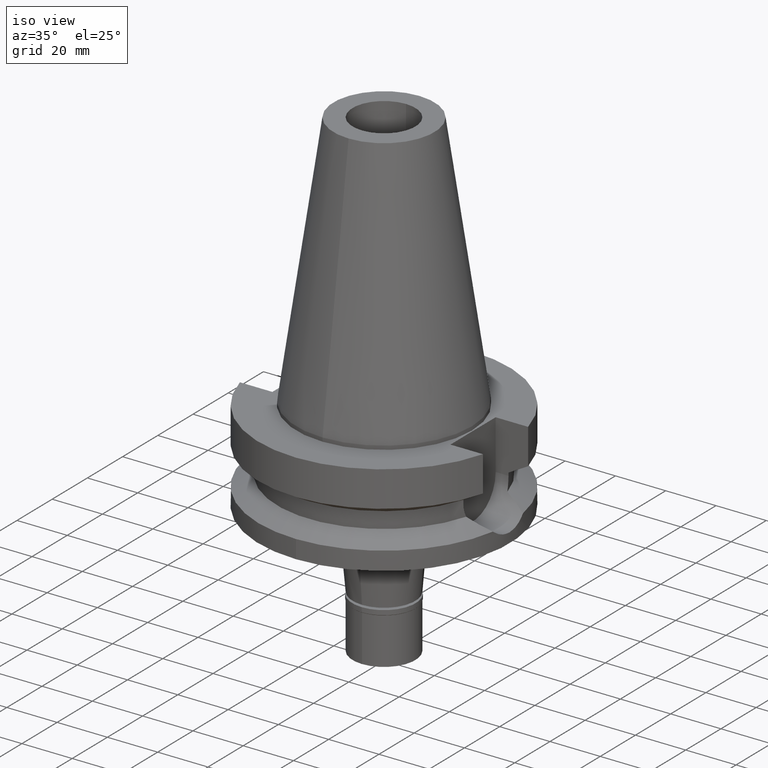
[diagram: clean part render]
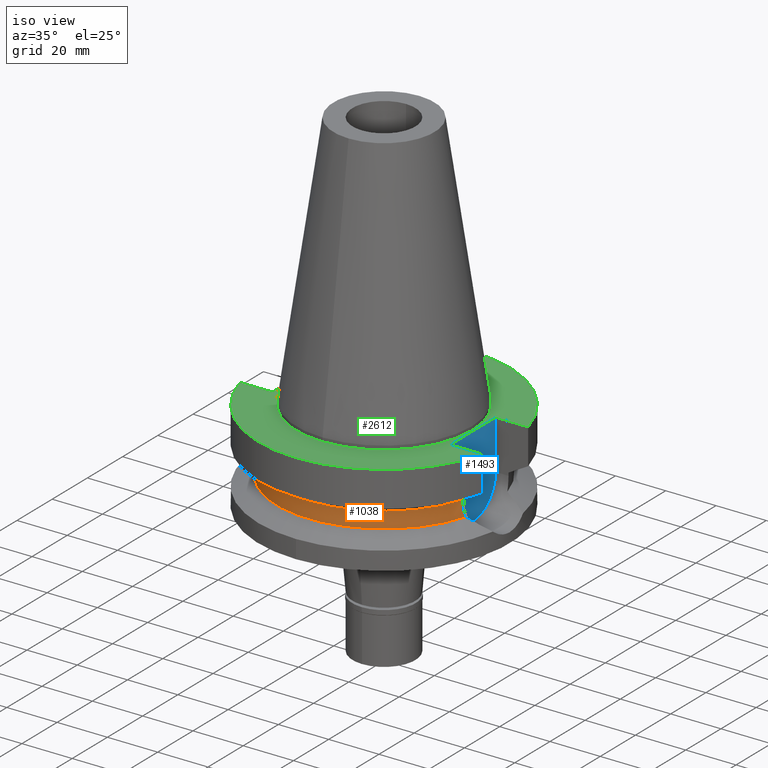
[diagram: same view with three faces highlighted in distinct colors, each labeled with its STEP entity id]
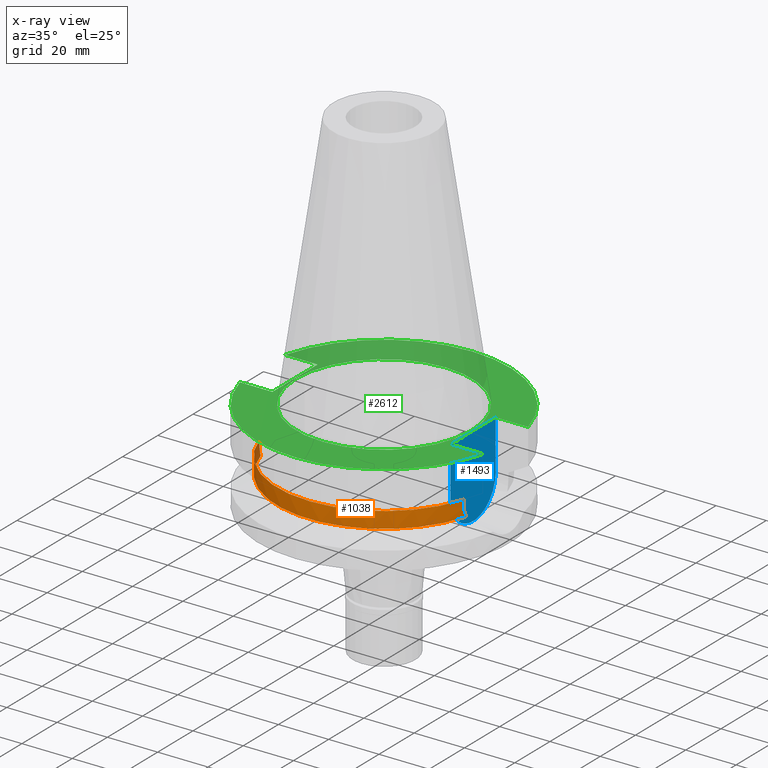
[diagram: x-ray of the same camera — body ghosted, the three highlighted faces saturated]
A machine part, iso view with three faces highlighted in distinct colors.
The next image is the same camera in x-ray (body ghosted, the three faces saturated) — at least one of them is partly hidden behind the body in this view.
Their STEP definitions:

[orange] entity #1038 — the highlighted cylindrical surface (partial cylindrical patch) has radius 42.5 mm, axis along (0, 0, -1).
#84 = DIRECTION ( 'NONE',  ( -9.660230349174957767E-07, -3.045480944670984998E-06, -0.9999999999948958607 ) ) ;
#147 = CARTESIAN_POINT ( 'NONE',  ( 40.54944727710436325, -12.72806419700720681, -22.93049076230283134 ) ) ;
#254 = CARTESIAN_POINT ( 'NONE',  ( -40.68244601107063829, -12.29666625012534986, -24.88710380514258347 ) ) ;
#334 = AXIS2_PLACEMENT_3D ( 'NONE', #668, #1646, #2634 ) ;
#406 = ORIENTED_EDGE ( 'NONE', *, *, #600, .F. ) ;
#423 = CARTESIAN_POINT ( 'NONE',  ( 40.54025313608426728, -12.75731810732606419, -22.70684014853312505 ) ) ;
#443 = CARTESIAN_POINT ( 'NONE',  ( 40.59736864107561161, -12.57412283048166479, -23.79851909554700384 ) ) ;
#484 = CIRCLE ( 'NONE', #334, 42.50000000000002132 ) ;
#485 = CARTESIAN_POINT ( 'NONE',  ( -40.51083188481999997, -12.84999999999999964, -21.14999999999999858 ) ) ;
#500 = CARTESIAN_POINT ( 'NONE',  ( -40.79434743163793087, -11.92110232363801892, -25.97065181133054068 ) ) ;
#514 = CARTESIAN_POINT ( 'NONE',  ( -40.60092750940732031, -12.56262654778222121, -23.85254111938501254 ) ) ;
#536 = CARTESIAN_POINT ( 'NONE',  ( -40.51083188481999997, -12.84999999999999964, -21.14999999999999858 ) ) ;
#600 = EDGE_CURVE ( 'NONE', #2950, #1372, #2800, .T. ) ;
#641 = CIRCLE ( 'NONE', #1309, 42.50000000000000000 ) ;
#642 = CARTESIAN_POINT ( 'NONE',  ( 0.0000000000000000000, 0.0000000000000000000, -26.40718074535000426 ) ) ;
#660 = EDGE_CURVE ( 'NONE', #848, #2575, #2712, .T. ) ;
#668 = CARTESIAN_POINT ( 'NONE',  ( 0.0000000000000000000, 1.006319759053999930E-14, -19.99281925464999787 ) ) ;
#715 = CARTESIAN_POINT ( 'NONE',  ( 40.51083188481999997, -12.84999999999999964, -19.99281925464999787 ) ) ;
#788 = CARTESIAN_POINT ( 'NONE',  ( 0.0000000000000000000, 2.584984463639999652E-14, 111.0799999999999983 ) ) ;
#795 = CARTESIAN_POINT ( 'NONE',  ( 40.51083300266000009, -12.84999647591000027, -19.99284629961000093 ) ) ;
#818 = VERTEX_POINT ( 'NONE', #715 ) ;
#848 = VERTEX_POINT ( 'NONE', #2888 ) ;
#876 = CARTESIAN_POINT ( 'NONE',  ( 40.85052569294000335, -11.72538061688000077, -26.40718074535000426 ) ) ;
#882 = EDGE_CURVE ( 'NONE', #1627, #2950, #1872, .T. ) ;
#922 = CARTESIAN_POINT ( 'NONE',  ( 40.56599673094051184, -12.67509433840682043, -23.26596311450202137 ) ) ;
#923 = ORIENTED_EDGE ( 'NONE', *, *, #2512, .T. ) ;
#994 = CARTESIAN_POINT ( 'NONE',  ( -40.51083299875000421, -12.84999648821000129, -19.99284620517000022 ) ) ;
#1038 = ADVANCED_FACE ( 'NONE', ( #1553 ), #2560, .T. ) ;
#1088 = LINE ( 'NONE', #795, #2637 ) ;
#1102 = AXIS2_PLACEMENT_3D ( 'NONE', #788, #2266, #2286 ) ;
#1309 = AXIS2_PLACEMENT_3D ( 'NONE', #642, #2794, #2824 ) ;
#1372 = VERTEX_POINT ( 'NONE', #994 ) ;
#1433 = ORIENTED_EDGE ( 'NONE', *, *, #1949, .F. ) ;
#1480 = CARTESIAN_POINT ( 'NONE',  ( -40.51083188481997865, -12.84999999999998366, -22.03308001789160642 ) ) ;
#1484 = CARTESIAN_POINT ( 'NONE',  ( -40.85052569294000335, -11.72538061688000077, -26.40718074535000426 ) ) ;
#1553 = FACE_OUTER_BOUND ( 'NONE', #2568, .T. ) ;
#1606 = CARTESIAN_POINT ( 'NONE',  ( 40.58662608485430212, -12.60878154790981931, -23.62927549511434222 ) ) ;
#1622 = CARTESIAN_POINT ( 'NONE',  ( 40.51818719763606680, -12.82722225432865670, -22.03686830839346200 ) ) ;
#1627 = VERTEX_POINT ( 'NONE', #1484 ) ;
#1635 = CARTESIAN_POINT ( 'NONE',  ( 40.57496101843508285, -12.64633755877060395, -23.43369807924777959 ) ) ;
#1646 = DIRECTION ( 'NONE',  ( 0.0000000000000000000, 0.0000000000000000000, -1.000000000000000000 ) ) ;
#1649 = CARTESIAN_POINT ( 'NONE',  ( 40.59188398425018107, -12.59182459259424647, -23.71305796895322615 ) ) ;
#1678 = CARTESIAN_POINT ( 'NONE',  ( -40.60257095199526134, -12.55731571366184873, -23.87709474182232938 ) ) ;
#1730 = CARTESIAN_POINT ( 'NONE',  ( -40.66327695313456303, -12.35977177935085258, -24.67238797833527286 ) ) ;
#1819 = DIRECTION ( 'NONE',  ( -9.626500030012304395E-07, 3.034847144118096361E-06, 0.9999999999949314988 ) ) ;
#1846 = CARTESIAN_POINT ( 'NONE',  ( 40.51083188481999997, -12.84999999999999964, -21.14999999999999858 ) ) ;
#1872 = B_SPLINE_CURVE_WITH_KNOTS ( 'NONE', 3,
 ( #2899, #500, #2452, #254, #1730, #2710, #2436, #2236, #2912, #1678, #514, #2679, #1480, #485 ),
 .UNSPECIFIED., .F., .F.,
 ( 4, 2, 2, 1, 1, 2, 2, 4 ),
 ( 0.0000000000000000000, 0.2500000000000052736, 0.3750000000000088263, 0.4375000000000096034, 0.4687500000000088818, 0.4843750000000085487, 0.5000000000000082157, 1.000000000000000000 ),
 .UNSPECIFIED. ) ;
#1889 = CARTESIAN_POINT ( 'NONE',  ( 40.59544671389546977, -12.58032818125662189, -23.76890350619418513 ) ) ;
#1949 = EDGE_CURVE ( 'NONE', #818, #848, #1088, .T. ) ;
#2055 = CARTESIAN_POINT ( 'NONE',  ( 40.85052569294000335, -11.72538061688000077, -26.40718074535000426 ) ) ;
#2236 = CARTESIAN_POINT ( 'NONE',  ( -40.61156896389120163, -12.52821669071695787, -24.00856318993662342 ) ) ;
#2266 = DIRECTION ( 'NONE',  ( 0.0000000000000000000, 0.0000000000000000000, -1.000000000000000000 ) ) ;
#2286 = DIRECTION ( 'NONE',  ( 0.0000000000000000000, -1.000000000000000000, 0.0000000000000000000 ) ) ;
#2317 = EDGE_CURVE ( 'NONE', #818, #1372, #484, .T. ) ;
#2365 = CARTESIAN_POINT ( 'NONE',  ( 40.65435955980318283, -12.39001970627028015, -24.66361747036604513 ) ) ;
#2372 = ORIENTED_EDGE ( 'NONE', *, *, #2317, .T. ) ;
#2413 = VECTOR ( 'NONE', #1819, 1000.000000000000000 ) ;
#2436 = CARTESIAN_POINT ( 'NONE',  ( -40.62482961095376055, -12.48525133054082481, -24.19329755004722315 ) ) ;
#2452 = CARTESIAN_POINT ( 'NONE',  ( -40.74530522850782432, -12.08734613716069362, -25.53455770061243157 ) ) ;
#2512 = EDGE_CURVE ( 'NONE', #1627, #2575, #641, .T. ) ;
#2560 = CYLINDRICAL_SURFACE ( 'NONE', #1102, 42.50000000000000000 ) ;
#2568 = EDGE_LOOP ( 'NONE', ( #3019, #923, #2758, #1433, #2372, #406 ) ) ;
#2575 = VERTEX_POINT ( 'NONE', #2055 ) ;
#2609 = CARTESIAN_POINT ( 'NONE',  ( 40.73816957791225946, -12.11682261042075126, -25.53412604435891708 ) ) ;
#2634 = DIRECTION ( 'NONE',  ( 0.9531960443486575674, -0.3023529411764863672, 0.0000000000000000000 ) ) ;
#2637 = VECTOR ( 'NONE', #84, 1000.000000000000114 ) ;
#2679 = CARTESIAN_POINT ( 'NONE',  ( -40.54025086427707691, -12.75862911299395996, -22.93149008166700398 ) ) ;
#2710 = CARTESIAN_POINT ( 'NONE',  ( -40.63719938804495513, -12.44499676301922442, -24.35261212845551171 ) ) ;
#2712 = B_SPLINE_CURVE_WITH_KNOTS ( 'NONE', 3,
 ( #1846, #2871, #1622, #423, #147, #922, #1635, #1606, #1649, #1889, #443, #2365, #2609, #876 ),
 .UNSPECIFIED., .F., .F.,
 ( 4, 2, 2, 1, 1, 2, 2, 4 ),
 ( 0.0000000000000000000, 0.2499999999999985567, 0.3749999999999977796, 0.4374999999999982792, 0.4687499999999975575, 0.4843749999999973355, 0.4999999999999970579, 1.000000000000000000 ),
 .UNSPECIFIED. ) ;
#2738 = CARTESIAN_POINT ( 'NONE',  ( -40.51083188481999997, -12.84999999999999964, -21.14999999999999858 ) ) ;
#2758 = ORIENTED_EDGE ( 'NONE', *, *, #660, .F. ) ;
#2794 = DIRECTION ( 'NONE',  ( 0.0000000000000000000, 0.0000000000000000000, 1.000000000000000000 ) ) ;
#2800 = LINE ( 'NONE', #536, #2413 ) ;
#2824 = DIRECTION ( 'NONE',  ( 0.0000000000000000000, -1.000000000000000000, 0.0000000000000000000 ) ) ;
#2871 = CARTESIAN_POINT ( 'NONE',  ( 40.51083188481999997, -12.84999999999999964, -21.59154171177805637 ) ) ;
#2888 = CARTESIAN_POINT ( 'NONE',  ( 40.51083188481999997, -12.84999999999999964, -21.14999999999999858 ) ) ;
#2899 = CARTESIAN_POINT ( 'NONE',  ( -40.85052569294000335, -11.72538061688000077, -26.40718074535000426 ) ) ;
#2912 = CARTESIAN_POINT ( 'NONE',  ( -40.60613670648098150, -12.54578755583379035, -23.92964714799200365 ) ) ;
#2950 = VERTEX_POINT ( 'NONE', #2738 ) ;
#3019 = ORIENTED_EDGE ( 'NONE', *, *, #882, .F. ) ;

[blue] entity #1493 — the highlighted planar face has unit normal (1, 0, 0).
#171 = VECTOR ( 'NONE', #743, 1000.000000000000000 ) ;
#252 = CARTESIAN_POINT ( 'NONE',  ( 35.39999999999999858, -12.84999999999999964, -21.14999999999999858 ) ) ;
#301 = DIRECTION ( 'NONE',  ( 0.0000000000000000000, 1.000000000000000000, 0.0000000000000000000 ) ) ;
#393 = VERTEX_POINT ( 'NONE', #2667 ) ;
#487 = CIRCLE ( 'NONE', #901, 12.84999999999999964 ) ;
#554 = ORIENTED_EDGE ( 'NONE', *, *, #2843, .T. ) ;
#627 = ORIENTED_EDGE ( 'NONE', *, *, #3016, .F. ) ;
#651 = PLANE ( 'NONE',  #2790 ) ;
#662 = VERTEX_POINT ( 'NONE', #2110 ) ;
#716 = EDGE_LOOP ( 'NONE', ( #912, #2142, #627, #554 ) ) ;
#725 = CARTESIAN_POINT ( 'NONE',  ( 35.39999999999999858, 12.84999999999999964, -1.500000000000000000 ) ) ;
#743 = DIRECTION ( 'NONE',  ( 0.0000000000000000000, 0.0000000000000000000, 1.000000000000000000 ) ) ;
#780 = DIRECTION ( 'NONE',  ( -1.000000000000000000, 0.0000000000000000000, 0.0000000000000000000 ) ) ;
#883 = DIRECTION ( 'NONE',  ( 0.0000000000000000000, 1.000000000000000000, 0.0000000000000000000 ) ) ;
#901 = AXIS2_PLACEMENT_3D ( 'NONE', #2447, #780, #301 ) ;
#912 = ORIENTED_EDGE ( 'NONE', *, *, #1794, .F. ) ;
#915 = DIRECTION ( 'NONE',  ( 0.0000000000000000000, -1.000000000000000000, 0.0000000000000000000 ) ) ;
#985 = CARTESIAN_POINT ( 'NONE',  ( 35.39999999999999858, -12.84999999999999964, -21.14999999999999858 ) ) ;
#1023 = LINE ( 'NONE', #1474, #2548 ) ;
#1442 = LINE ( 'NONE', #725, #2176 ) ;
#1474 = CARTESIAN_POINT ( 'NONE',  ( 35.39999999999999858, 12.84999999999999964, -1.500000000000000000 ) ) ;
#1493 = ADVANCED_FACE ( 'NONE', ( #3065 ), #651, .T. ) ;
#1626 = DIRECTION ( 'NONE',  ( 1.000000000000000000, 0.0000000000000000000, 0.0000000000000000000 ) ) ;
#1794 = EDGE_CURVE ( 'NONE', #2235, #662, #2496, .T. ) ;
#1997 = DIRECTION ( 'NONE',  ( 0.0000000000000000000, 0.0000000000000000000, -1.000000000000000000 ) ) ;
#2110 = CARTESIAN_POINT ( 'NONE',  ( 35.39999999999999858, -12.84999999999999964, -1.500000000000000000 ) ) ;
#2142 = ORIENTED_EDGE ( 'NONE', *, *, #2893, .F. ) ;
#2176 = VECTOR ( 'NONE', #915, 1000.000000000000000 ) ;
#2235 = VERTEX_POINT ( 'NONE', #252 ) ;
#2447 = CARTESIAN_POINT ( 'NONE',  ( 35.39999999999999858, 0.0000000000000000000, -21.14999999999999858 ) ) ;
#2496 = LINE ( 'NONE', #985, #171 ) ;
#2548 = VECTOR ( 'NONE', #1997, 1000.000000000000000 ) ;
#2667 = CARTESIAN_POINT ( 'NONE',  ( 35.39999999999999858, 12.84999999999999964, -21.14999999999999858 ) ) ;
#2787 = VERTEX_POINT ( 'NONE', #3113 ) ;
#2790 = AXIS2_PLACEMENT_3D ( 'NONE', #3080, #1626, #883 ) ;
#2843 = EDGE_CURVE ( 'NONE', #2787, #662, #1442, .T. ) ;
#2893 = EDGE_CURVE ( 'NONE', #393, #2235, #487, .T. ) ;
#3016 = EDGE_CURVE ( 'NONE', #2787, #393, #1023, .T. ) ;
#3065 = FACE_OUTER_BOUND ( 'NONE', #716, .T. ) ;
#3080 = CARTESIAN_POINT ( 'NONE',  ( 35.39999999999999858, 0.0000000000000000000, 0.0000000000000000000 ) ) ;
#3113 = CARTESIAN_POINT ( 'NONE',  ( 35.39999999999999858, 12.84999999999999964, -1.500000000000000000 ) ) ;

[green] entity #2612 — the highlighted planar face has unit normal (0, 0, -1).
#60 = AXIS2_PLACEMENT_3D ( 'NONE', #2927, #1714, #1451 ) ;
#67 = ORIENTED_EDGE ( 'NONE', *, *, #134, .F. ) ;
#81 = ORIENTED_EDGE ( 'NONE', *, *, #428, .F. ) ;
#112 = EDGE_CURVE ( 'NONE', #1070, #569, #2887, .T. ) ;
#134 = EDGE_CURVE ( 'NONE', #662, #1070, #1894, .T. ) ;
#205 = EDGE_CURVE ( 'NONE', #225, #569, #1153, .T. ) ;
#225 = VERTEX_POINT ( 'NONE', #1910 ) ;
#255 = VERTEX_POINT ( 'NONE', #1125 ) ;
#340 = ORIENTED_EDGE ( 'NONE', *, *, #205, .T. ) ;
#388 = FACE_BOUND ( 'NONE', #1785, .T. ) ;
#392 = CARTESIAN_POINT ( 'NONE',  ( 35.39999999999999858, 12.84999999999999964, -1.500000000000000000 ) ) ;
#395 = EDGE_CURVE ( 'NONE', #225, #2134, #984, .T. ) ;
#427 = DIRECTION ( 'NONE',  ( 0.0000000000000000000, -1.000000000000000000, 0.0000000000000000000 ) ) ;
#428 = EDGE_CURVE ( 'NONE', #1582, #1317, #2170, .T. ) ;
#446 = DIRECTION ( 'NONE',  ( 0.0000000000000000000, 0.0000000000000000000, -1.000000000000000000 ) ) ;
#490 = CARTESIAN_POINT ( 'NONE',  ( 0.0000000000000000000, 2.584984463639999652E-14, -1.500000000000000000 ) ) ;
#518 = CARTESIAN_POINT ( 'NONE',  ( -35.39999999999999858, -12.84999999999999964, -1.500000000000000000 ) ) ;
#550 = CARTESIAN_POINT ( 'NONE',  ( 48.32057015392000210, -12.84999999999999964, -1.500000000000000000 ) ) ;
#569 = VERTEX_POINT ( 'NONE', #3041 ) ;
#588 = VECTOR ( 'NONE', #1386, 1000.000000000000000 ) ;
#661 = CARTESIAN_POINT ( 'NONE',  ( 35.39999999999999858, -12.84999999999999964, -1.500000000000000000 ) ) ;
#662 = VERTEX_POINT ( 'NONE', #2110 ) ;
#719 = DIRECTION ( 'NONE',  ( 0.0000000000000000000, 1.000000000000000000, 0.0000000000000000000 ) ) ;
#725 = CARTESIAN_POINT ( 'NONE',  ( 35.39999999999999858, 12.84999999999999964, -1.500000000000000000 ) ) ;
#778 = CARTESIAN_POINT ( 'NONE',  ( -35.39999999999999858, 12.84999999999999964, -1.500000000000000000 ) ) ;
#779 = EDGE_CURVE ( 'NONE', #3062, #255, #1042, .T. ) ;
#786 = VECTOR ( 'NONE', #2138, 1000.000000000000000 ) ;
#859 = CARTESIAN_POINT ( 'NONE',  ( 0.0000000000000000000, 2.584984463639999652E-14, -1.500000000000000000 ) ) ;
#871 = DIRECTION ( 'NONE',  ( 0.0000000000000000000, -1.000000000000000000, 0.0000000000000000000 ) ) ;
#908 = ORIENTED_EDGE ( 'NONE', *, *, #2843, .F. ) ;
#915 = DIRECTION ( 'NONE',  ( 0.0000000000000000000, -1.000000000000000000, 0.0000000000000000000 ) ) ;
#984 = LINE ( 'NONE', #518, #1554 ) ;
#1035 = ORIENTED_EDGE ( 'NONE', *, *, #1253, .F. ) ;
#1042 = CIRCLE ( 'NONE', #60, 34.92499999999999716 ) ;
#1070 = VERTEX_POINT ( 'NONE', #550 ) ;
#1096 = CARTESIAN_POINT ( 'NONE',  ( -35.39999999999999858, 12.84999999999999964, -1.500000000000000000 ) ) ;
#1115 = PLANE ( 'NONE',  #2596 ) ;
#1125 = CARTESIAN_POINT ( 'NONE',  ( 0.0000000000000000000, -34.92499999999999716, -1.500000000000000000 ) ) ;
#1146 = LINE ( 'NONE', #392, #786 ) ;
#1153 = LINE ( 'NONE', #1625, #588 ) ;
#1160 = EDGE_CURVE ( 'NONE', #2787, #1317, #1146, .T. ) ;
#1199 = VECTOR ( 'NONE', #1401, 1000.000000000000000 ) ;
#1253 = EDGE_CURVE ( 'NONE', #255, #3062, #2536, .T. ) ;
#1270 = ORIENTED_EDGE ( 'NONE', *, *, #112, .F. ) ;
#1317 = VERTEX_POINT ( 'NONE', #3170 ) ;
#1363 = DIRECTION ( 'NONE',  ( 0.0000000000000000000, 0.0000000000000000000, -1.000000000000000000 ) ) ;
#1386 = DIRECTION ( 'NONE',  ( -1.000000000000000000, 0.0000000000000000000, 0.0000000000000000000 ) ) ;
#1401 = DIRECTION ( 'NONE',  ( 1.000000000000000000, 0.0000000000000000000, 0.0000000000000000000 ) ) ;
#1442 = LINE ( 'NONE', #725, #2176 ) ;
#1451 = DIRECTION ( 'NONE',  ( 0.0000000000000000000, 1.000000000000000000, 0.0000000000000000000 ) ) ;
#1497 = AXIS2_PLACEMENT_3D ( 'NONE', #1639, #446, #427 ) ;
#1554 = VECTOR ( 'NONE', #719, 1000.000000000000000 ) ;
#1559 = VECTOR ( 'NONE', #3082, 1000.000000000000000 ) ;
#1582 = VERTEX_POINT ( 'NONE', #2822 ) ;
#1585 = DIRECTION ( 'NONE',  ( 0.0000000000000000000, -1.000000000000000000, 0.0000000000000000000 ) ) ;
#1625 = CARTESIAN_POINT ( 'NONE',  ( -35.39999999999999858, -12.84999999999999964, -1.500000000000000000 ) ) ;
#1639 = CARTESIAN_POINT ( 'NONE',  ( 0.0000000000000000000, 2.584984463639999652E-14, -1.500000000000000000 ) ) ;
#1701 = ORIENTED_EDGE ( 'NONE', *, *, #2533, .F. ) ;
#1714 = DIRECTION ( 'NONE',  ( 0.0000000000000000000, 0.0000000000000000000, 1.000000000000000000 ) ) ;
#1722 = EDGE_LOOP ( 'NONE', ( #340, #1270, #67, #908, #2117, #81, #1701, #2654 ) ) ;
#1740 = CARTESIAN_POINT ( 'NONE',  ( 0.0000000000000000000, 34.92499999999999716, -1.500000000000000000 ) ) ;
#1785 = EDGE_LOOP ( 'NONE', ( #2570, #1035 ) ) ;
#1894 = LINE ( 'NONE', #661, #1199 ) ;
#1910 = CARTESIAN_POINT ( 'NONE',  ( -35.39999999999999858, -12.84999999999999964, -1.500000000000000000 ) ) ;
#2092 = CARTESIAN_POINT ( 'NONE',  ( 0.0000000000000000000, 1.206277097159999845E-14, -1.500000000000000000 ) ) ;
#2110 = CARTESIAN_POINT ( 'NONE',  ( 35.39999999999999858, -12.84999999999999964, -1.500000000000000000 ) ) ;
#2117 = ORIENTED_EDGE ( 'NONE', *, *, #1160, .T. ) ;
#2134 = VERTEX_POINT ( 'NONE', #778 ) ;
#2138 = DIRECTION ( 'NONE',  ( 1.000000000000000000, 0.0000000000000000000, 0.0000000000000000000 ) ) ;
#2170 = CIRCLE ( 'NONE', #3146, 50.00000000000000000 ) ;
#2176 = VECTOR ( 'NONE', #915, 1000.000000000000000 ) ;
#2455 = DIRECTION ( 'NONE',  ( 0.0000000000000000000, 0.0000000000000000000, -1.000000000000000000 ) ) ;
#2475 = AXIS2_PLACEMENT_3D ( 'NONE', #859, #2812, #1585 ) ;
#2533 = EDGE_CURVE ( 'NONE', #2134, #1582, #2571, .T. ) ;
#2536 = CIRCLE ( 'NONE', #2475, 34.92499999999999716 ) ;
#2570 = ORIENTED_EDGE ( 'NONE', *, *, #779, .F. ) ;
#2571 = LINE ( 'NONE', #1096, #1559 ) ;
#2596 = AXIS2_PLACEMENT_3D ( 'NONE', #2092, #1363, #871 ) ;
#2612 = ADVANCED_FACE ( 'NONE', ( #3096, #388 ), #1115, .F. ) ;
#2654 = ORIENTED_EDGE ( 'NONE', *, *, #395, .F. ) ;
#2787 = VERTEX_POINT ( 'NONE', #3113 ) ;
#2812 = DIRECTION ( 'NONE',  ( 0.0000000000000000000, 0.0000000000000000000, 1.000000000000000000 ) ) ;
#2822 = CARTESIAN_POINT ( 'NONE',  ( -48.32057015392000210, 12.84999999999999964, -1.500000000000000000 ) ) ;
#2843 = EDGE_CURVE ( 'NONE', #2787, #662, #1442, .T. ) ;
#2887 = CIRCLE ( 'NONE', #1497, 50.00000000000000000 ) ;
#2927 = CARTESIAN_POINT ( 'NONE',  ( 0.0000000000000000000, 2.584984463639999652E-14, -1.500000000000000000 ) ) ;
#3041 = CARTESIAN_POINT ( 'NONE',  ( -48.32057015392000210, -12.84999999999999964, -1.500000000000000000 ) ) ;
#3062 = VERTEX_POINT ( 'NONE', #1740 ) ;
#3082 = DIRECTION ( 'NONE',  ( -1.000000000000000000, 0.0000000000000000000, 0.0000000000000000000 ) ) ;
#3096 = FACE_OUTER_BOUND ( 'NONE', #1722, .T. ) ;
#3113 = CARTESIAN_POINT ( 'NONE',  ( 35.39999999999999858, 12.84999999999999964, -1.500000000000000000 ) ) ;
#3146 = AXIS2_PLACEMENT_3D ( 'NONE', #490, #2455, #3178 ) ;
#3170 = CARTESIAN_POINT ( 'NONE',  ( 48.32057015392000210, 12.84999999999999964, -1.500000000000000000 ) ) ;
#3178 = DIRECTION ( 'NONE',  ( 0.0000000000000000000, 1.000000000000000000, 0.0000000000000000000 ) ) ;